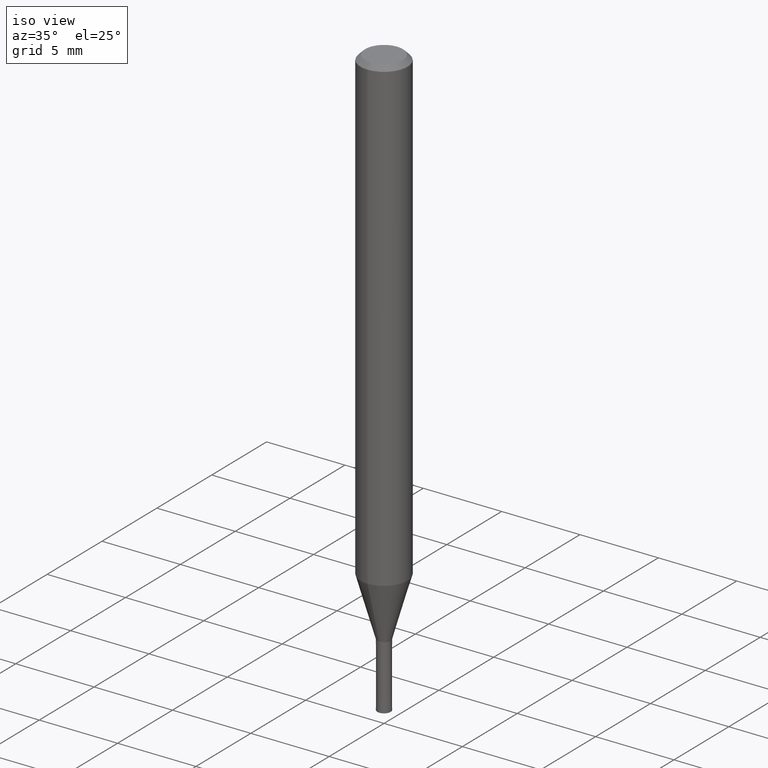
[diagram: clean part render]
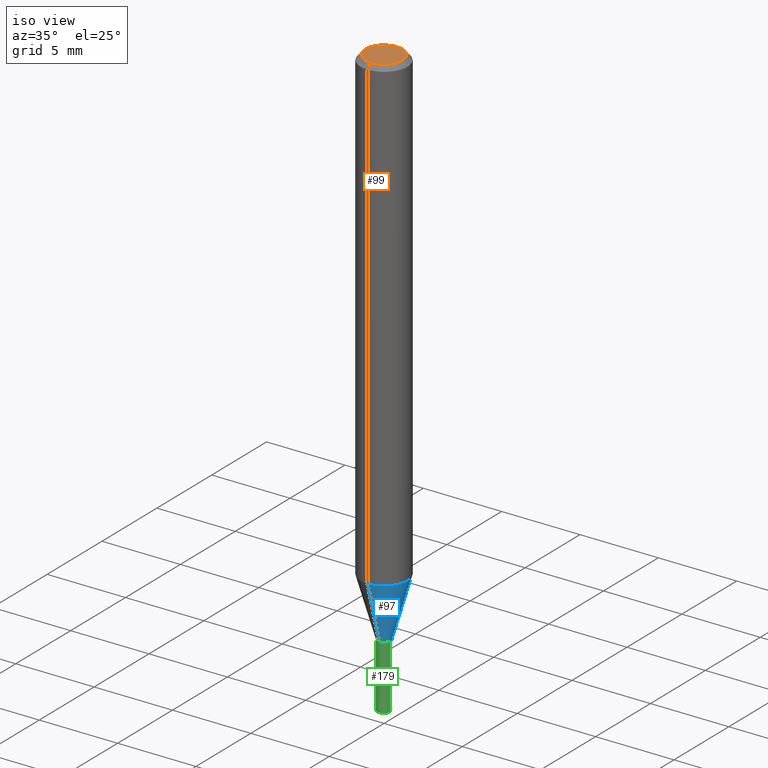
[diagram: same view with three faces highlighted in distinct colors, each labeled with its STEP entity id]
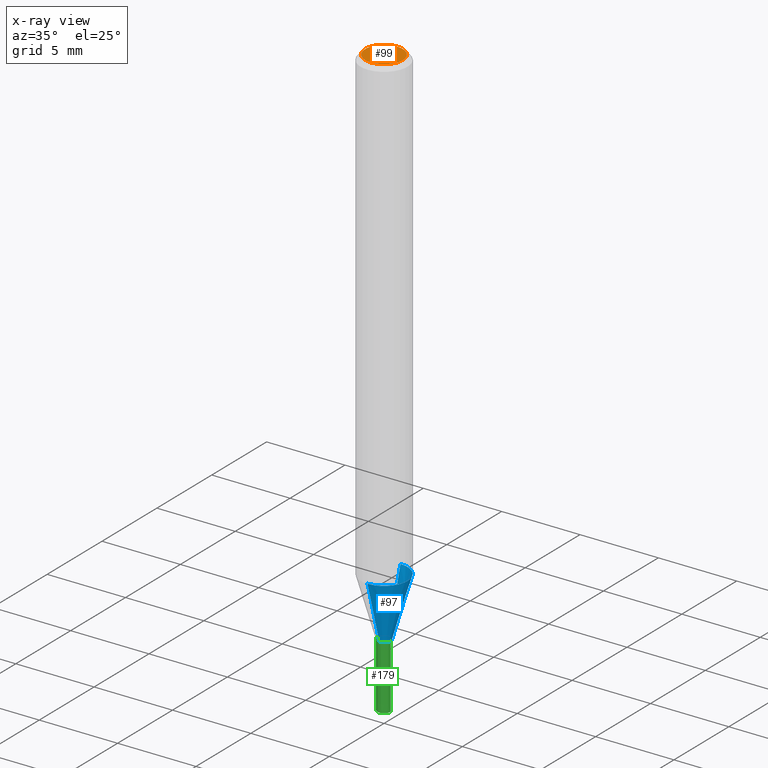
[diagram: x-ray of the same camera — body ghosted, the three highlighted faces saturated]
A machine part, iso view with three faces highlighted in distinct colors.
The next image is the same camera in x-ray (body ghosted, the three faces saturated) — at least one of them is partly hidden behind the body in this view.
Their STEP definitions:

[orange] entity #99 — the highlighted planar face has unit normal (-0, 0, 1).
#95=VERTEX_POINT('',#231);
#99=ADVANCED_FACE('',(#236),#237,.T.);
#161=EDGE_CURVE('',#95,#173,#305,.T.);
#173=VERTEX_POINT('',#318);
#181=EDGE_CURVE('',#173,#95,#327,.T.);
#231=CARTESIAN_POINT('',(0.0,1.2,0.0));
#236=FACE_OUTER_BOUND('',#380,.T.);
#237=PLANE('',#381);
#305=CIRCLE('',#473,1.2);
#318=CARTESIAN_POINT('',(1.46952762458685E-016,-1.2,0.0));
#327=CIRCLE('',#499,1.2);
#380=EDGE_LOOP('',(#551,#552));
#381=AXIS2_PLACEMENT_3D('',#553,#554,#555);
#473=AXIS2_PLACEMENT_3D('',#638,#639,#640);
#499=AXIS2_PLACEMENT_3D('',#661,#662,#663);
#551=ORIENTED_EDGE('',*,*,#161,.F.);
#552=ORIENTED_EDGE('',*,*,#181,.F.);
#553=CARTESIAN_POINT('',(0.0,0.6,0.0));
#554=DIRECTION('',(-0.0,0.0,1.0));
#555=DIRECTION('',(0.0,-1.0,0.0));
#638=CARTESIAN_POINT('',(0.0,0.0,0.0));
#639=DIRECTION('',(0.0,0.0,-1.0));
#640=DIRECTION('',(0.0,1.0,0.0));
#661=CARTESIAN_POINT('',(0.0,0.0,0.0));
#662=DIRECTION('',(0.0,0.0,-1.0));
#663=DIRECTION('',(0.0,1.0,0.0));

[blue] entity #97 — the highlighted conical surface has half-angle 16.003 deg.
#97=ADVANCED_FACE('',(#233),#234,.T.);
#105=VERTEX_POINT('',#245);
#111=VERTEX_POINT('',#252);
#121=EDGE_CURVE('',#105,#183,#262,.T.);
#129=EDGE_CURVE('',#183,#111,#271,.T.);
#147=EDGE_CURVE('',#111,#177,#290,.T.);
#175=EDGE_CURVE('',#105,#177,#320,.T.);
#177=VERTEX_POINT('',#322);
#183=VERTEX_POINT('',#329);
#233=FACE_OUTER_BOUND('',#377,.T.);
#234=CONICAL_SURFACE('',#378,0.9625,0.279311816116806);
#245=CARTESIAN_POINT('',(0.0,1.5,-29.951));
#252=CARTESIAN_POINT('',(5.2045770037451E-017,-0.425,-33.6991339745962));
#262=LINE('',#413,#414);
#271=CIRCLE('',#427,0.425);
#290=LINE('',#452,#453);
#320=CIRCLE('',#491,1.5);
#322=CARTESIAN_POINT('',(1.83690953073357E-016,-1.5,-29.951));
#329=CARTESIAN_POINT('',(0.0,0.425,-33.6991339745962));
#377=EDGE_LOOP('',(#543,#544,#545,#546));
#378=AXIS2_PLACEMENT_3D('',#547,#548,#549);
#413=CARTESIAN_POINT('',(-1.17868361555404E-016,0.9625,-31.8250669872981));
#414=VECTOR('',#585,1.0);
#427=AXIS2_PLACEMENT_3D('',#598,#599,#600);
#452=CARTESIAN_POINT('',(1.17868361555404E-016,-0.9625,-31.8250669872981));
#453=VECTOR('',#623,1.0);
#491=AXIS2_PLACEMENT_3D('',#650,#651,#652);
#543=ORIENTED_EDGE('',*,*,#121,.F.);
#544=ORIENTED_EDGE('',*,*,#175,.T.);
#545=ORIENTED_EDGE('',*,*,#147,.F.);
#546=ORIENTED_EDGE('',*,*,#129,.F.);
#547=CARTESIAN_POINT('',(0.0,0.0,-31.8250669872981));
#548=DIRECTION('',(-0.0,-0.0,1.0));
#549=DIRECTION('',(0.0,1.0,0.0));
#585=DIRECTION('',(3.3761686941431E-017,-0.275694200312208,-0.961245394222626));
#598=CARTESIAN_POINT('',(0.0,0.0,-33.6991339745962));
#599=DIRECTION('',(0.0,0.0,-1.0));
#600=DIRECTION('',(0.0,1.0,0.0));
#623=DIRECTION('',(3.3761686941431E-017,-0.275694200312208,0.961245394222626));
#650=CARTESIAN_POINT('',(0.0,0.0,-29.951));
#651=DIRECTION('',(0.0,0.0,-1.0));
#652=DIRECTION('',(0.0,1.0,0.0));

[green] entity #179 — the highlighted conical surface has half-angle 0.014 deg.
#93=EDGE_CURVE('',#163,#131,#229,.T.);
#109=EDGE_CURVE('',#169,#163,#250,.T.);
#123=EDGE_CURVE('',#189,#131,#264,.T.);
#131=VERTEX_POINT('',#273);
#163=VERTEX_POINT('',#307);
#169=VERTEX_POINT('',#314);
#179=ADVANCED_FACE('',(#324),#325,.T.);
#187=EDGE_CURVE('',#189,#169,#333,.T.);
#189=VERTEX_POINT('',#335);
#229=LINE('',#372,#373);
#250=CIRCLE('',#395,0.426);
#264=CIRCLE('',#417,0.425);
#273=CARTESIAN_POINT('',(-0.425,0.0,-37.80181925));
#307=CARTESIAN_POINT('',(-0.426,0.0,-33.7));
#314=CARTESIAN_POINT('',(0.426,5.21682306728333E-017,-33.7));
#324=FACE_OUTER_BOUND('',#495,.T.);
#325=CONICAL_SURFACE('',#496,0.4255,0.000243794257923023);
#333=LINE('',#507,#508);
#335=CARTESIAN_POINT('',(0.425,5.2045770037451E-017,-37.80181925));
#372=CARTESIAN_POINT('',(-0.4255,-5.21070003551422E-017,-35.750909625));
#373=VECTOR('',#541,1.0);
#395=AXIS2_PLACEMENT_3D('',#577,#578,#579);
#417=AXIS2_PLACEMENT_3D('',#586,#587,#588);
#495=EDGE_LOOP('',(#654,#655,#656,#657));
#496=AXIS2_PLACEMENT_3D('',#658,#659,#660);
#507=CARTESIAN_POINT('',(0.4255,5.21070003551421E-017,-35.750909625));
#508=VECTOR('',#667,1.0);
#541=DIRECTION('',(0.000243794255508012,2.98551994320507E-020,-0.99999997028218));
#577=CARTESIAN_POINT('',(0.0,0.0,-33.7));
#578=DIRECTION('',(0.0,0.0,-1.0));
#579=DIRECTION('',(-1.0,0.0,0.0));
#586=CARTESIAN_POINT('',(0.0,0.0,-37.80181925));
#587=DIRECTION('',(0.0,0.0,-1.0));
#588=DIRECTION('',(-1.0,0.0,0.0));
#654=ORIENTED_EDGE('',*,*,#93,.T.);
#655=ORIENTED_EDGE('',*,*,#123,.F.);
#656=ORIENTED_EDGE('',*,*,#187,.T.);
#657=ORIENTED_EDGE('',*,*,#109,.T.);
#658=CARTESIAN_POINT('',(0.0,0.0,-35.750909625));
#659=DIRECTION('',(-0.0,-0.0,1.0));
#660=DIRECTION('',(-1.0,0.0,0.0));
#667=DIRECTION('',(0.000243794255508012,2.98551994320507E-020,0.99999997028218));